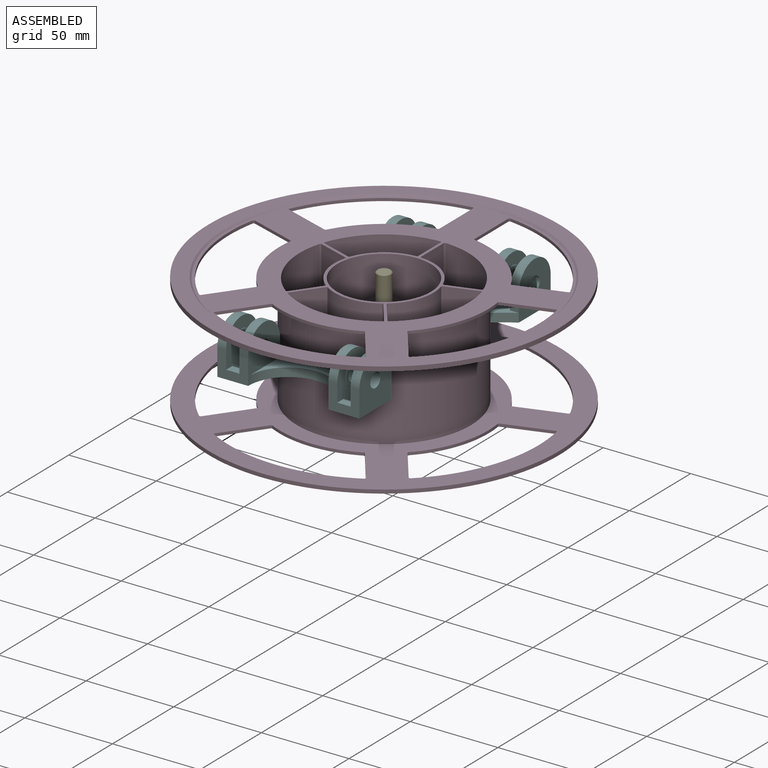
[diagram: assembled view]
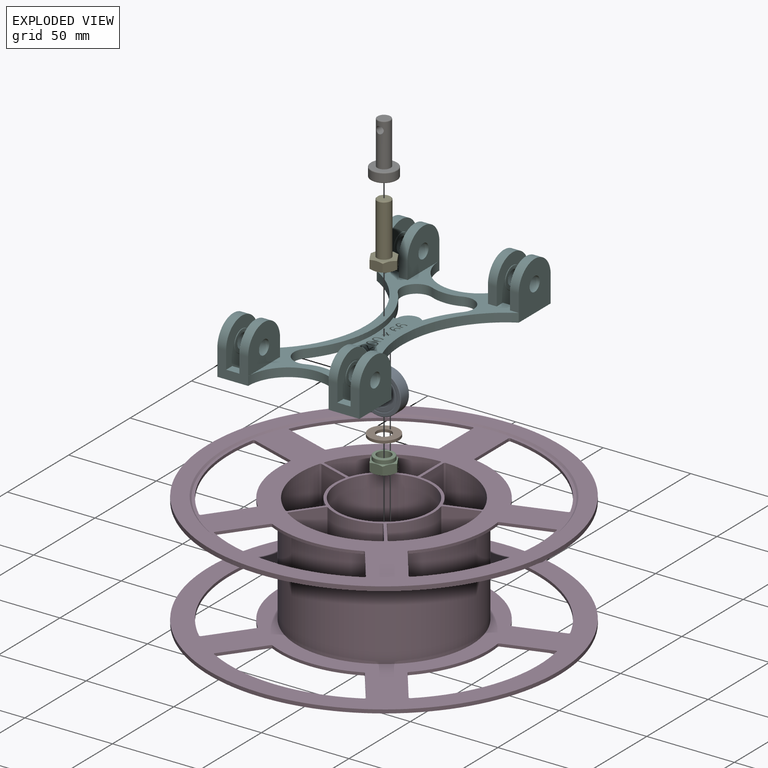
[diagram: exploded view]
GUIDED TOUR — FREECAD ASSEMBLY "Spool Roller"

This assembly has 8 components, labeled P0..P7 below (a component is one placed body or linked part; the same part can appear more than once), held together by 0 modeled joints plus 22 derived contact edges. A joint is a constraint between two components; its type names the relative motion it leaves free:
  CONTACT — a derived adjacency edge — the two components touch in the source model (clearance under 2% of the assembly's diagonal); it is measured from the geometry, not a modeled constraint.
Axis/direction vectors are unit vectors and 'through' points are millimeter coordinates, both in the assembly's world frame.

MATES
  1. CONTACT "contact_0_1": P0 <-> P1, contact direction (0.000, 0.000, 1.000) through (3.34, -3.03, 1.62) mm (derived from contact, not a modeled constraint)
  2. CONTACT "contact_0_2": P0 <-> P2, contact direction (0.000, 0.000, 1.000) through (4.51, -3.46, 7.79) mm (derived from contact, not a modeled constraint)
  3. CONTACT "contact_0_4": P0 <-> P4, contact direction (0.000, 0.000, 1.000) through (2.18, -3.43, 5.54) mm (derived from contact, not a modeled constraint)
  4. CONTACT "contact_0_5": P0 <-> P5, contact direction (0.000, 0.000, 1.000) through (4.98, 3.22, 5.01) mm (derived from contact, not a modeled constraint)
  5. CONTACT "contact_0_6": P0 <-> P6, contact direction (0.000, 0.000, 1.000) through (5.99, -3.58, 0.00) mm (derived from contact, not a modeled constraint)
  6. CONTACT "contact_0_7": P0 <-> P7, contact direction (0.000, 1.000, 0.000) through (5.11, 3.08, 2.77) mm (derived from contact, not a modeled constraint)
  7. CONTACT "contact_1_2": P1 <-> P2, contact direction (0.000, 0.000, 1.000) through (0.31, 4.09, 0.00) mm (derived from contact, not a modeled constraint)
  8. CONTACT "contact_1_4": P1 <-> P4, contact direction (0.000, 0.000, 1.000) through (-8.00, 0.00, 0.25) mm (derived from contact, not a modeled constraint)
  9. CONTACT "contact_1_5": P1 <-> P5, contact direction (0.000, 0.000, 1.000) through (-1.51, 8.39, 1.50) mm (derived from contact, not a modeled constraint)
  10. CONTACT "contact_1_6": P1 <-> P6, contact direction (0.000, 0.000, 1.000) through (-7.84, -1.58, 0.19) mm (derived from contact, not a modeled constraint)
  11. CONTACT "contact_1_7": P1 <-> P7, contact direction (0.000, 0.000, 1.000) through (4.52, 0.00, 0.00) mm (derived from contact, not a modeled constraint)
  12. CONTACT "contact_2_4": P2 <-> P4, contact direction (0.000, 0.000, 1.000) through (-4.73, -4.47, 5.50) mm (derived from contact, not a modeled constraint)
  13. CONTACT "contact_2_5": P2 <-> P5, contact direction (0.000, 0.000, 1.000) through (5.03, 3.00, 5.25) mm (derived from contact, not a modeled constraint)
  14. CONTACT "contact_2_6": P2 <-> P6, contact direction (0.000, 0.000, 1.000) through (3.75, -6.50, 0.50) mm (derived from contact, not a modeled constraint)
  15. CONTACT "contact_2_7": P2 <-> P7, contact direction (0.000, 1.000, 0.000) through (-5.59, 2.56, 0.00) mm (derived from contact, not a modeled constraint)
  16. CONTACT "contact_3_5": P3 <-> P5, contact direction (0.000, 0.000, 1.000) through (22.53, 56.90, 28.33) mm (derived from contact, not a modeled constraint)
  17. CONTACT "contact_4_5": P4 <-> P5, contact direction (0.000, 0.000, -1.000) through (5.28, 3.21, 5.25) mm (derived from contact, not a modeled constraint)
  18. CONTACT "contact_4_6": P4 <-> P6, contact direction (0.000, 0.000, -1.000) through (7.51, 0.00, 0.50) mm (derived from contact, not a modeled constraint)
  19. CONTACT "contact_4_7": P4 <-> P7, contact direction (0.000, 0.000, -1.000) through (5.59, 2.56, 0.00) mm (derived from contact, not a modeled constraint)
  20. CONTACT "contact_5_6": P5 <-> P6, contact direction (0.000, 0.000, 1.000) through (-0.94, -7.45, 0.75) mm (derived from contact, not a modeled constraint)
  21. CONTACT "contact_5_7": P5 <-> P7, contact direction (0.000, 0.000, -1.000) through (-4.97, 0.01, 2.33) mm (derived from contact, not a modeled constraint)
  22. CONTACT "contact_6_7": P6 <-> P7, contact direction (0.000, 0.000, -1.000) through (5.89, 2.50, 0.00) mm (derived from contact, not a modeled constraint)

ASSEMBLY ORDER
  1. P4 — the base component [order heuristic]
  2. P6 — core [order heuristic]
  3. P5 [order verified]
  4. P2 — core [order heuristic]
  5. P7 — core [order heuristic]
  6. P1 — core [order heuristic]
  7. P3 [order verified]
  8. P0 — core [order heuristic]
Order-tag legend:
  [order verified] — this step's position reverses a verified removal order: the component was checked to insert without passing through the ones already placed.
  [order heuristic] — the first 6 components form the assembly's core: parts whose collision-free extraction could not be verified, listed in mate-graph order.

Of the 8 components, 8 carry a construction recipe — the FreeCAD feature program (sketches with constraints, then the solid features that consume them) that regenerates the part from scratch, quoted from this document or from the linked companion document it references; the rest are supplied as boundary geometry only. The tour below walks the components in assembly order: each is shown spotlighted twice — in the assembled view, then in the exploded view, where a leader line traces a displaced component back to its assembled socket (components that stay in place when exploded have no leader line; saturated green if recipe-attached, orange if geometry-only; every other component desaturated gray) — followed by its recipe or geometry summary and the mates that hold it.
NOTE — document 2 of 2 of this assembly tour. The two overview renders and the header above are repeated from document 1; the component sections below continue where the previous document stopped.
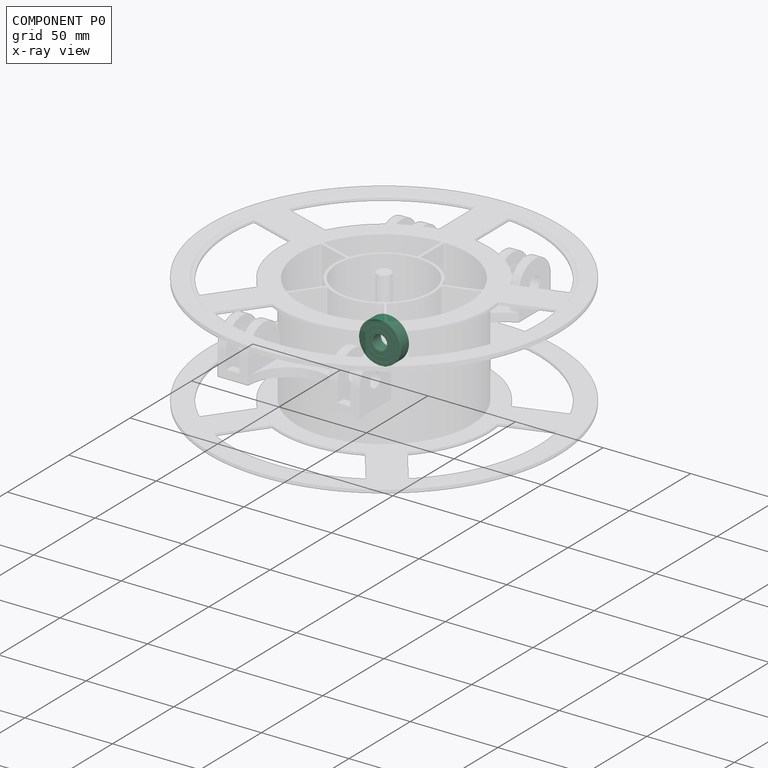
[diagram: component P0 — x-ray view]
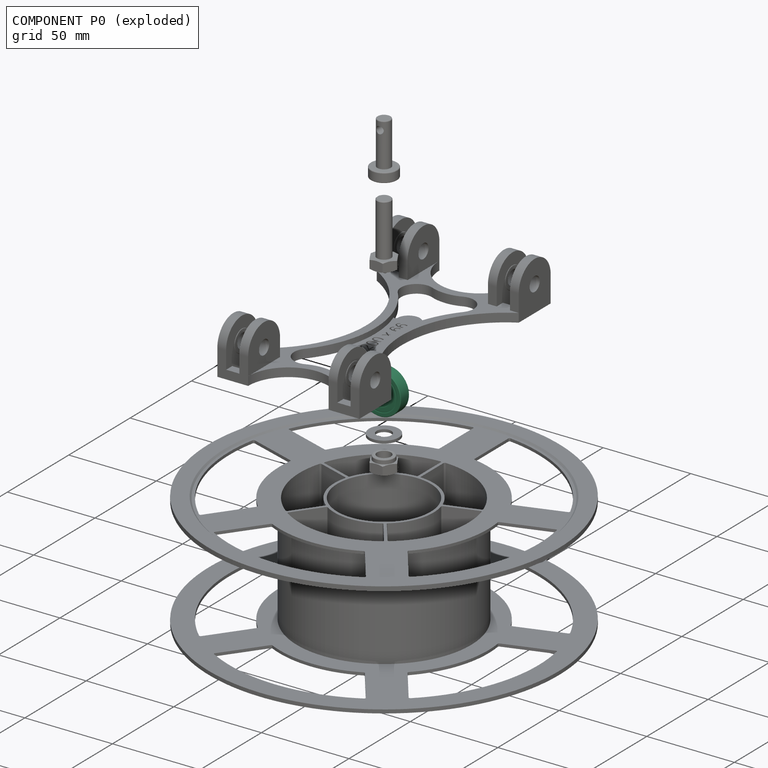
[diagram: component P0 — exploded]
COMPONENT P0 — recipe-attached ("Ball Bearing", modeled in this document).
Held by: resting contact with P1 (derived edge); resting contact with P2 (derived edge); resting contact with P4 (derived edge); resting contact with P5 (derived edge); resting contact with P6 (derived edge); resting contact with P7 (derived edge).
Construction recipe (the document's own serialized feature program — sketch geometry with constraints, then the solid features built on it; lengths are millimeters unless a unit is written):

FEATURE [Sketcher::SketchObject] Sketch
  ArcFitTolerance = 1e-06
  AttachmentSupport = -> [XY_Plane]
  FullyConstrained = true
  MakeInternals = false
  MapMode = 5
  expr: Constraints[31] = <<Spreadsheet>>.BallBearingThickness
  expr: Constraints[35] = <<Spreadsheet>>.BallBearingThickness - 0.2 mm
  expr: Constraints[36] = <<Spreadsheet>>.BallBearingInnerDiameter / 2
  expr: Constraints[37] = ((<<Spreadsheet>>.BallBearingOuterDiameter - <<Spreadsheet>>.BallBearingInnerDiameter) / 2 - 1 mm) / 3
  expr: Constraints[38] = ((<<Spreadsheet>>.BallBearingOuterDiameter - <<Spreadsheet>>.BallBearingInnerDiameter) / 2 - 1 mm) / 3
  expr: Constraints[39] = ((<<Spreadsheet>>.BallBearingOuterDiameter - <<Spreadsheet>>.BallBearingInnerDiameter) / 2 - 1 mm) / 3
  sketch-geometry (28):
    g0: LineSegment StartX=4 StartY=-3.2 StartZ=0 EndX=4 EndY=3.2 EndZ=0
    g1: LineSegment StartX=4.3 StartY=3.5 StartZ=0 EndX=6 EndY=3.5 EndZ=0
    g2: LineSegment StartX=6 StartY=3.5 StartZ=0 EndX=6.5 EndY=3.4 EndZ=0
    g3: LineSegment StartX=6.5 StartY=3.4 StartZ=0 EndX=7 EndY=3.5 EndZ=0
    g4: LineSegment StartX=7 StartY=3.5 StartZ=0 EndX=9 EndY=3.5 EndZ=0
    g5: LineSegment StartX=9 StartY=3.5 StartZ=0 EndX=9.5 EndY=3.4 EndZ=0
    g6: LineSegment StartX=9.5 StartY=3.4 StartZ=0 EndX=10 EndY=3.5 EndZ=0
    g7: LineSegment StartX=10 StartY=3.5 StartZ=0 EndX=11.7 EndY=3.5 EndZ=0
    g8: LineSegment StartX=12 StartY=3.2 StartZ=0 EndX=12 EndY=-3.2 EndZ=0
    g9: LineSegment StartX=11.7 StartY=-3.5 StartZ=0 EndX=10 EndY=-3.5 EndZ=0
    g10: LineSegment StartX=10 StartY=-3.5 StartZ=0 EndX=9.5 EndY=-3.4 EndZ=0
    g11: LineSegment StartX=9.5 StartY=-3.4 StartZ=0 EndX=9 EndY=-3.5 EndZ=0
    g12: LineSegment StartX=9 StartY=-3.5 StartZ=0 EndX=7 EndY=-3.5 EndZ=0
    g13: LineSegment StartX=7 StartY=-3.5 StartZ=0 EndX=6.5 EndY=-3.4 EndZ=0
    g14: LineSegment StartX=6.5 StartY=-3.4 StartZ=0 EndX=6 EndY=-3.5 EndZ=0
    g15: LineSegment StartX=6 StartY=-3.5 StartZ=0 EndX=4.3 EndY=-3.5 EndZ=0
    g16: ArcOfCircle [constr] CenterX=11.7 CenterY=3.2 CenterZ=0 NormalX=0 NormalY=0 NormalZ=1 AngleXU=0 Radius=0.3 StartAngle=0 EndAngle=1.5708
    g17: GeomPoint [constr] X=12 Y=3.5 Z=0
    g18: LineSegment StartX=12 StartY=3.2 StartZ=0 EndX=11.7 EndY=3.5 EndZ=0
    g19: ArcOfCircle [constr] CenterX=11.7 CenterY=-3.2 CenterZ=0 NormalX=0 NormalY=0 NormalZ=1 AngleXU=0 Radius=0.3 StartAngle=4.71239 EndAngle=6.28319
    g20: GeomPoint [constr] X=12 Y=-3.5 Z=0
    g21: LineSegment StartX=11.7 StartY=-3.5 StartZ=0 EndX=12 EndY=-3.2 EndZ=0
    g22: ArcOfCircle [constr] CenterX=4.3 CenterY=-3.2 CenterZ=0 NormalX=0 NormalY=0 NormalZ=1 AngleXU=0 Radius=0.3 StartAngle=3.14159 EndAngle=4.71239
    g23: GeomPoint [constr] X=4 Y=-3.5 Z=0
    g24: LineSegment StartX=4 StartY=-3.2 StartZ=0 EndX=4.3 EndY=-3.5 EndZ=0
    g25: ArcOfCircle [constr] CenterX=4.3 CenterY=3.2 CenterZ=0 NormalX=0 NormalY=0 NormalZ=1 AngleXU=0 Radius=0.3 StartAngle=1.5708 EndAngle=3.14159
    g26: GeomPoint [constr] X=4 Y=3.5 Z=0
    g27: LineSegment StartX=4.3 StartY=3.5 StartZ=0 EndX=4 EndY=3.2 EndZ=0
  constraints (70):
    c: Horizontal(g1)
    c: Coincident(g1,g2)
    c: Coincident(g2,g3)
    c: Coincident(g3,g4)
    c: Horizontal(g4)
    c: Coincident(g4,g5)
    c: Coincident(g5,g6)
    c: Coincident(g6,g7)
    c: Vertical(g8)
    c: Horizontal(g9)
    c: Coincident(g9,g10)
    c: Coincident(g10,g11)
    c: Coincident(g11,g12)
    c: Coincident(g12,g13)
    c: Coincident(g13,g14)
    c: Coincident(g14,g15)
    c: Symmetric(g26,g23,g-1)
    c: Horizontal(g15)
    c: Horizontal(g12)
    c: Horizontal(g7)
    c: Horizontal(g14,g12)
    c: Horizontal(g12,g9)
    c: Horizontal(g1,g3)
    c: Horizontal(g3,g6)
    c: Equal(g2,g3)
    c: Equal(g3,g5)
    c: Equal(g5,g6)
    c: Equal(g6,g10)
    c: Equal(g10,g11)
    c: Equal(g11,g13)
    c: Equal(g13,g14)
    c: DistanceY(g23,g26) = 7
    c: Symmetric(g2,g13,g-1)
    c: Horizontal(g10,g13)
    c: Horizontal(g2,g5)
    c: DistanceY(g13,g2) = 6.8
    c: DistanceX(g26) = 4
    c: DistanceX(g26,g1) = 2
    c: DistanceX(g4,g4) = 2
    c: DistanceX(g7,g17) = 2
    c: Equal(g12,g4)
    c: DistanceX(g1,g3) = 1
    c: PointOnObject(g17,g7)
    c: PointOnObject(g17,g8)
    c: Tangent(g7,g16) = 1.5708
    c: Tangent(g8,g16) = 1.5708
    c: Coincident(g18,g7)
    c: Coincident(g18,g8)
    c: PointOnObject(g20,g8)
    c: PointOnObject(g20,g9)
    c: Tangent(g8,g19) = 1.5708
    c: Tangent(g9,g19) = 1.5708
    c: Coincident(g21,g8)
    c: Coincident(g21,g9)
    c: PointOnObject(g23,g0)
    c: PointOnObject(g23,g15)
    c: Tangent(g0,g22) = 1.5708
    c: Tangent(g15,g22) = 1.5708
    c: Coincident(g24,g0)
    c: Coincident(g24,g15)
    c: PointOnObject(g26,g0)
    c: PointOnObject(g26,g1)
    c: Tangent(g0,g25) = 1.5708
    c: Tangent(g1,g25) = 1.5708
    c: Coincident(g27,g0)
    c: Coincident(g27,g1)
    c: Radius(g16) = 0.3
    c: Equal(g16,g19)
    c: Equal(g19,g22)
    c: Equal(g22,g25)
FEATURE [PartDesign::Revolution] Revolution
  Angle = 360
  Angle2 = 60
  Axis = (0,1,0)
  Base = (0,0,0)
  Profile = -> Sketch
  ReferenceAxis = -> Sketch [V_Axis]
  Reversed = true
  Suppressed = false
  Type = 0
FEATURE [PartDesign::CoordinateSystem] Center
  AttacherType = Attacher::AttachEngine3D
  AttachmentSupport = -> [Revolution]
  MapMode = 45
  Placement = pos=(-9e-16,0,-1e-16) rot=(0,0.707107,0.707107;3.14159rad)
FEATURE [PartDesign::Body] Body  label="Ball Bearing"
  AllowCompound = false
  Group = -> [Sketch,Revolution,Center]
  Origin = -> Origin
  Tip = -> Revolution
PROVENANCE & LICENSES
Assembly and component geometry: a FreeCAD (.FCStd) document from a public repository crawl; components, placements and joints were extracted with FreeCAD and each solid tessellated.
Construction recipes: the document's own serialized feature recipes (and, for linked parts, the recipes of companion documents from the same project).
License: as declared in the source repository (recorded in the dataset sidecar).
Joints: native FreeCAD joints and A2plus constraints are mapped to standard mate types; edges marked 'derived from contact' connect touching components and are measured from the geometry, not modeled.
Verification: 8 of this assembly's 8 components carry a construction recipe (8 from this document itself); the rest are geometry-only. Every component's tessellation passed the extraction mesh gates (mesh-volume checksum against the B-rep where available, bounding-box inflation <= 2%).
Renders: orthographic iso camera (az 35 / el 25); the floor grid conveys scale (grid pitch printed in each image; no ruler). In the exploded view each component is displaced by its stored offset vector: the offsets alone carry the explosion direction (mate normal/axis signs are not orientation cues and do not encode it), and separation distances are assigned per mate-chain, not proportionally to assembly-order depth.
